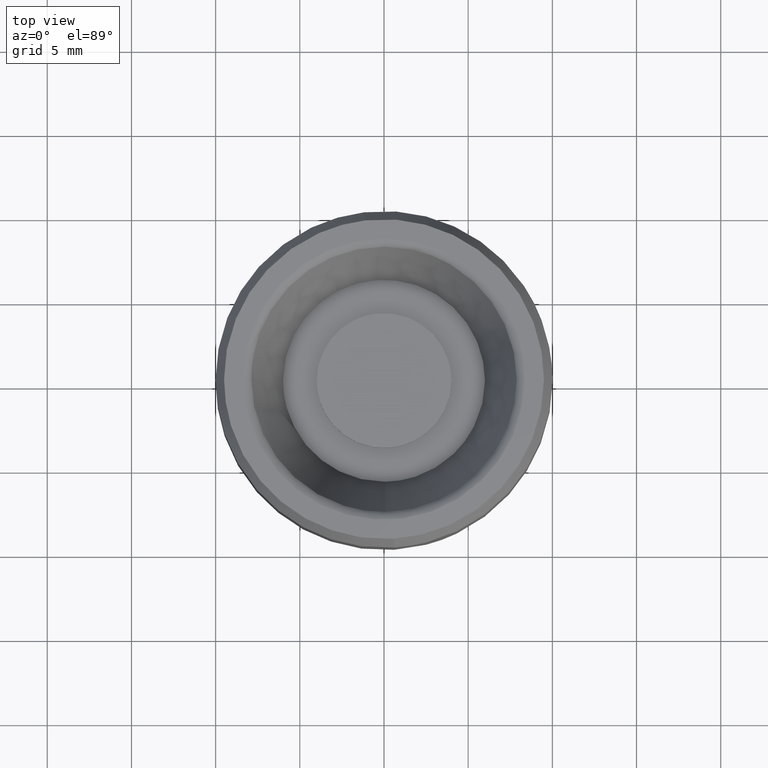
[diagram: clean part render]
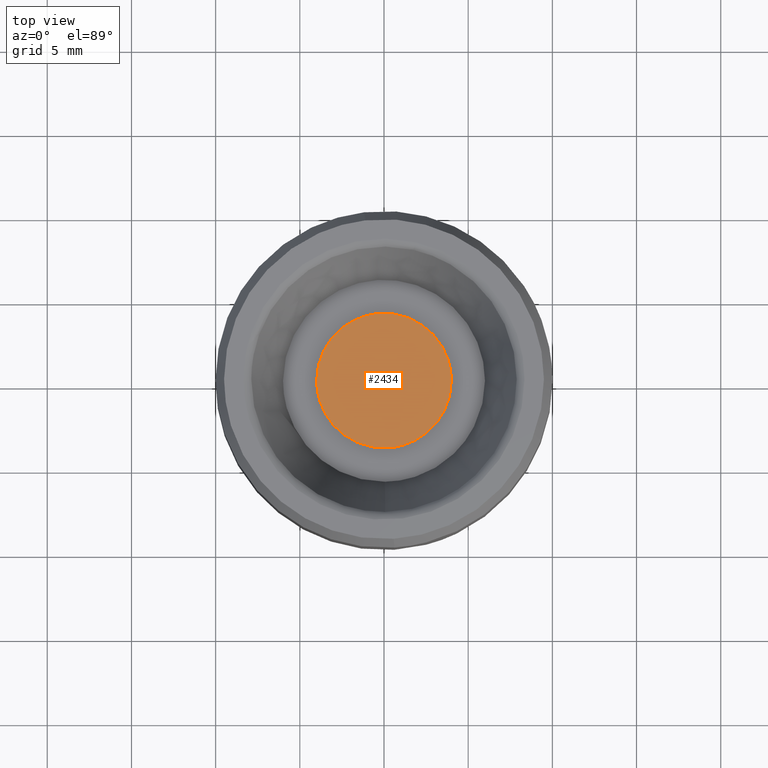
[diagram: same view with one face highlighted and labeled with its STEP entity id]
A machine part, top view. The second image highlights one B-rep face of the part: STEP entity #2434.
In plain terms, the highlighted face is a freeform B-spline surface patch.
Its self-contained STEP definition (entity closure, byte-faithful):
#902=CARTESIAN_POINT('',(-0.472136938650753,3.972038105451846,10.0));
#903=VERTEX_POINT('',#902);
#909=CARTESIAN_POINT('',(4.0,0.0,10.0));
#910=VERTEX_POINT('',#909);
#911=CARTESIAN_POINT('',(-0.472136938650753,3.972038105451845,9.999999999999998));
#912=CARTESIAN_POINT('',(-0.236896478631610,4.0,9.999999999999998));
#913=CARTESIAN_POINT('',(0.0,4.0,10.0));
#914=CARTESIAN_POINT('',(4.000000000000000,4.000000000000000,10.000000000000002));
#915=CARTESIAN_POINT('',(4.0,0.0,10.0));
#923=(BOUNDED_CURVE()B_SPLINE_CURVE(2,(#911,#912,#913,#914,#915),.UNSPECIFIED.,.F.,.U.)B_SPLINE_CURVE_WITH_KNOTS((3,2,3),(0.229562473513626,0.250000000000000,0.500000000000000),.UNSPECIFIED.)CURVE()GEOMETRIC_REPRESENTATION_ITEM()RATIONAL_B_SPLINE_CURVE((0.956026754183930,0.976055948331283,1.0,0.707106781186548,1.0))REPRESENTATION_ITEM(''));
#924=EDGE_CURVE('',#903,#910,#923,.T.);
#926=CARTESIAN_POINT('',(0.244194158243022,-3.992539193681131,10.0));
#927=VERTEX_POINT('',#926);
#928=CARTESIAN_POINT('',(4.0,0.0,10.0));
#929=CARTESIAN_POINT('',(4.0,-3.762824267427149,10.0));
#930=CARTESIAN_POINT('',(0.244194158243022,-3.992539193681131,10.000000000000002));
#938=(BOUNDED_CURVE()B_SPLINE_CURVE(2,(#928,#929,#930),.UNSPECIFIED.,.F.,.U.)B_SPLINE_CURVE_WITH_KNOTS((3,3),(0.500000000000000,0.739332962233014),.UNSPECIFIED.)CURVE()GEOMETRIC_REPRESENTATION_ITEM()RATIONAL_B_SPLINE_CURVE((1.0,0.719603993293656,0.976072041654012))REPRESENTATION_ITEM(''));
#939=EDGE_CURVE('',#910,#927,#938,.T.);
#1013=CARTESIAN_POINT('',(-4.0,0.0,10.0));
#1014=VERTEX_POINT('',#1013);
#1015=CARTESIAN_POINT('',(0.244194158243022,-3.992539193681131,10.0));
#1016=CARTESIAN_POINT('',(0.122211053298241,-4.000000000000001,10.000000000000002));
#1017=CARTESIAN_POINT('',(0.0,-4.0,10.0));
#1018=CARTESIAN_POINT('',(-4.000000000000000,-4.000000000000000,10.000000000000002));
#1019=CARTESIAN_POINT('',(-4.0,0.0,10.0));
#1027=(BOUNDED_CURVE()B_SPLINE_CURVE(2,(#1015,#1016,#1017,#1018,#1019),.UNSPECIFIED.,.F.,.U.)B_SPLINE_CURVE_WITH_KNOTS((3,2,3),(0.739332962233014,0.750000000000000,1.0),.UNSPECIFIED.)CURVE()GEOMETRIC_REPRESENTATION_ITEM()RATIONAL_B_SPLINE_CURVE((0.976072041654011,0.987502787892891,1.0,0.707106781186548,1.0))REPRESENTATION_ITEM(''));
#1028=EDGE_CURVE('',#927,#1014,#1027,.T.);
#1030=CARTESIAN_POINT('',(-4.0,0.0,10.0));
#1031=CARTESIAN_POINT('',(-4.000000000000000,3.552698103762744,9.999999999999998));
#1032=CARTESIAN_POINT('',(-0.472136938650753,3.972038105451846,10.0));
#1040=(BOUNDED_CURVE()B_SPLINE_CURVE(2,(#1030,#1031,#1032),.UNSPECIFIED.,.F.,.U.)B_SPLINE_CURVE_WITH_KNOTS((3,3),(0.0,0.229562473513626),.UNSPECIFIED.)CURVE()GEOMETRIC_REPRESENTATION_ITEM()RATIONAL_B_SPLINE_CURVE((1.0,0.731050832855265,0.956026754183930))REPRESENTATION_ITEM(''));
#1041=EDGE_CURVE('',#1014,#903,#1040,.T.);
#2423=CARTESIAN_POINT('',(4.399599984494448,-4.399502628049822,10.0));
#2424=CARTESIAN_POINT('',(-4.399600199071169,-4.399502628049822,10.0));
#2425=CARTESIAN_POINT('',(4.399599984494448,4.399527232847184,10.0));
#2426=CARTESIAN_POINT('',(-4.399600199071169,4.399527232847184,10.0));
#2427=B_SPLINE_SURFACE_WITH_KNOTS('',1,1,((#2423,#2425),(#2424,#2426)),.UNSPECIFIED.,.F.,.F.,.U.,(2,2),(2,2),(0.0,8.799200183565617),(0.0,8.799029860897006),.UNSPECIFIED.);
#2428=ORIENTED_EDGE('',*,*,#1028,.F.);
#2429=ORIENTED_EDGE('',*,*,#939,.F.);
#2430=ORIENTED_EDGE('',*,*,#924,.F.);
#2431=ORIENTED_EDGE('',*,*,#1041,.F.);
#2432=EDGE_LOOP('',(#2428,#2429,#2430,#2431));
#2433=FACE_OUTER_BOUND('',#2432,.T.);
#2434=ADVANCED_FACE('',(#2433),#2427,.F.);